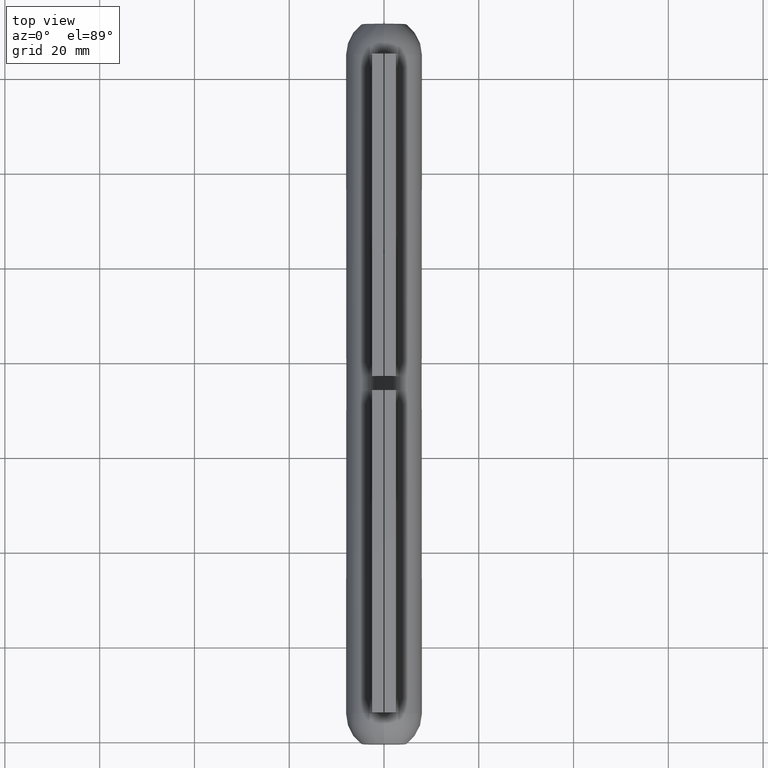
[diagram: clean part render]
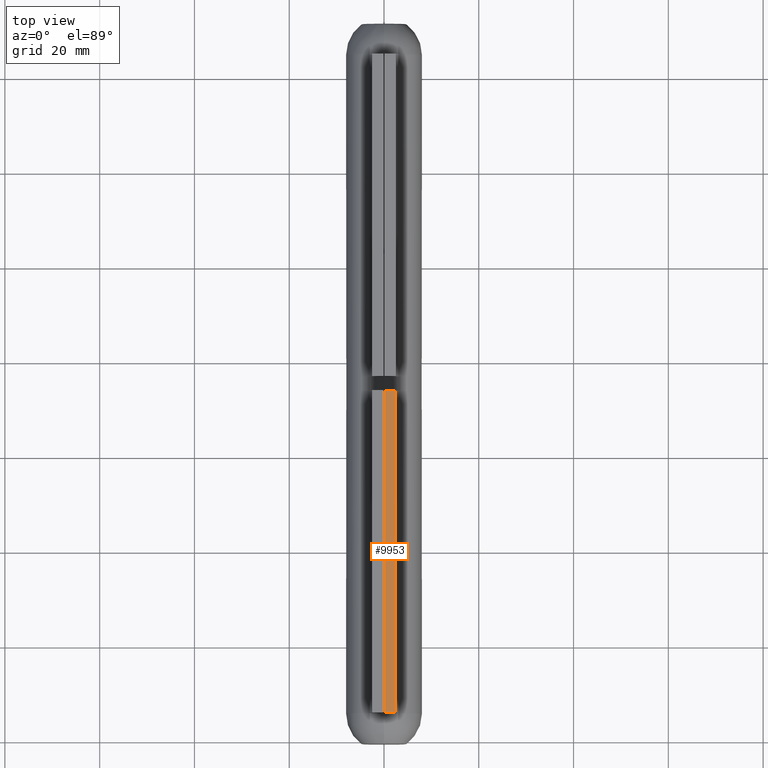
[diagram: same view with one face highlighted and labeled with its STEP entity id]
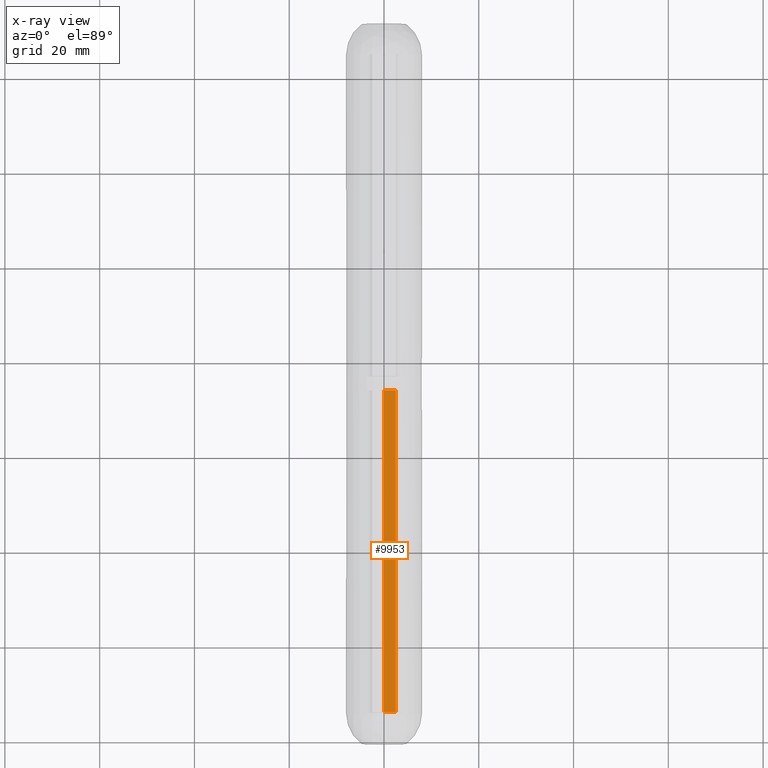
[diagram: x-ray of the same camera — body ghosted, the highlighted face saturated]
A machine part, top view. The second image highlights one B-rep face of the part: STEP entity #9953.
The next image is the same camera in x-ray: the body ghosted, the highlighted face saturated — about 0% of this face is hidden behind the body in this view.
In plain terms, the highlighted planar face has unit normal (0, 0, -1).
Its self-contained STEP definition (entity closure, byte-faithful):
#269 = EDGE_CURVE ( 'NONE', #3763, #6172, #9941, .T. ) ;
#436 = EDGE_CURVE ( 'NONE', #9131, #6172, #1258, .T. ) ;
#694 = VECTOR ( 'NONE', #4946, 1000.000000000000000 ) ;
#725 = DIRECTION ( 'NONE',  ( -0.000000000000000000, -1.000000000000000000, -0.000000000000000000 ) ) ;
#1062 = LINE ( 'NONE', #2597, #6693 ) ;
#1258 = LINE ( 'NONE', #3197, #1868 ) ;
#1868 = VECTOR ( 'NONE', #7101, 1000.000000000000000 ) ;
#2026 = CARTESIAN_POINT ( 'NONE',  ( 0.1000000000000015599, 34.00000000000000000, 13.49999999999999822 ) ) ;
#2597 = CARTESIAN_POINT ( 'NONE',  ( 0.1000000000000015599, 34.00000000000000000, 13.49999999999999822 ) ) ;
#2684 = DIRECTION ( 'NONE',  ( -1.000000000000000000, 0.000000000000000000, -0.000000000000000000 ) ) ;
#3001 = EDGE_CURVE ( 'NONE', #11045, #9131, #1062, .T. ) ;
#3197 = CARTESIAN_POINT ( 'NONE',  ( 0.1000000000000015599, -34.00000000000000000, 13.49999999999999822 ) ) ;
#3708 = CARTESIAN_POINT ( 'NONE',  ( 2.500000000000001776, 34.00000000000000000, 13.49999999999999822 ) ) ;
#3763 = VERTEX_POINT ( 'NONE', #3708 ) ;
#3771 = PLANE ( 'NONE',  #5930 ) ;
#4283 = CARTESIAN_POINT ( 'NONE',  ( 0.1000000000000015599, 34.00000000000000000, 13.49999999999999822 ) ) ;
#4469 = CARTESIAN_POINT ( 'NONE',  ( 2.500000000000001776, -34.00000000000000000, 13.49999999999999822 ) ) ;
#4946 = DIRECTION ( 'NONE',  ( 1.000000000000000000, 0.000000000000000000, 0.000000000000000000 ) ) ;
#5244 = FACE_OUTER_BOUND ( 'NONE', #7618, .T. ) ;
#5930 = AXIS2_PLACEMENT_3D ( 'NONE', #8712, #6771, #2684 ) ;
#6172 = VERTEX_POINT ( 'NONE', #4469 ) ;
#6693 = VECTOR ( 'NONE', #725, 1000.000000000000000 ) ;
#6771 = DIRECTION ( 'NONE',  ( 0.000000000000000000, 0.000000000000000000, -1.000000000000000000 ) ) ;
#6933 = LINE ( 'NONE', #2026, #694 ) ;
#7034 = ORIENTED_EDGE ( 'NONE', *, *, #3001, .T. ) ;
#7101 = DIRECTION ( 'NONE',  ( 1.000000000000000000, 0.000000000000000000, 0.000000000000000000 ) ) ;
#7339 = VECTOR ( 'NONE', #8743, 1000.000000000000000 ) ;
#7502 = ORIENTED_EDGE ( 'NONE', *, *, #269, .F. ) ;
#7618 = EDGE_LOOP ( 'NONE', ( #11169, #7502, #11763, #7034 ) ) ;
#8712 = CARTESIAN_POINT ( 'NONE',  ( 0.1000000000000015599, 34.00000000000000000, 13.49999999999999822 ) ) ;
#8743 = DIRECTION ( 'NONE',  ( -0.000000000000000000, -1.000000000000000000, -0.000000000000000000 ) ) ;
#8980 = CARTESIAN_POINT ( 'NONE',  ( 0.1000000000000015599, -34.00000000000000000, 13.49999999999999822 ) ) ;
#9131 = VERTEX_POINT ( 'NONE', #8980 ) ;
#9941 = LINE ( 'NONE', #12615, #7339 ) ;
#9953 = ADVANCED_FACE ( 'NONE', ( #5244 ), #3771, .F. ) ;
#11045 = VERTEX_POINT ( 'NONE', #4283 ) ;
#11169 = ORIENTED_EDGE ( 'NONE', *, *, #436, .T. ) ;
#11763 = ORIENTED_EDGE ( 'NONE', *, *, #12700, .F. ) ;
#12615 = CARTESIAN_POINT ( 'NONE',  ( 2.500000000000001776, 34.00000000000000000, 13.49999999999999822 ) ) ;
#12700 = EDGE_CURVE ( 'NONE', #11045, #3763, #6933, .T. ) ;